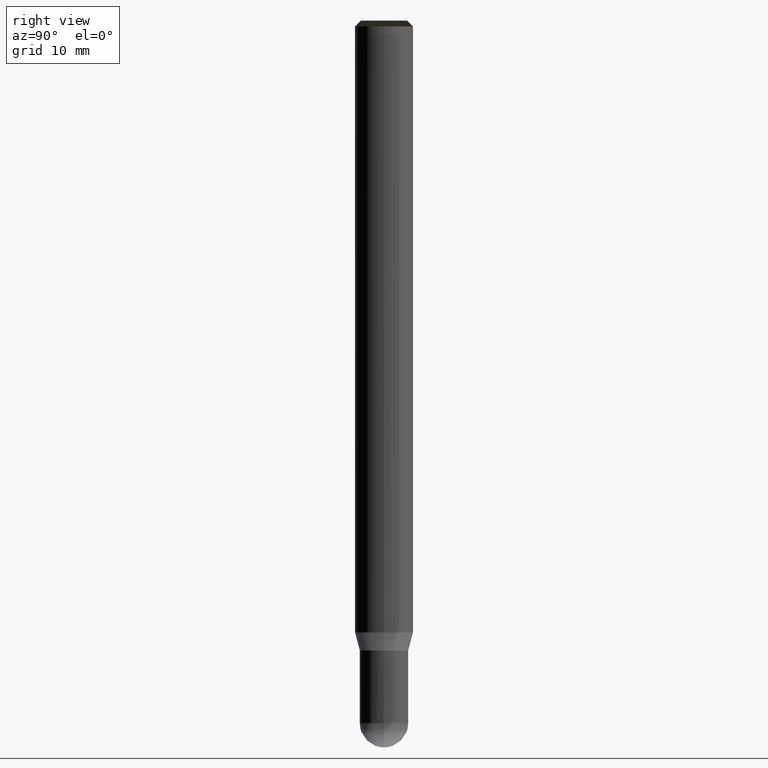
[diagram: clean part render]
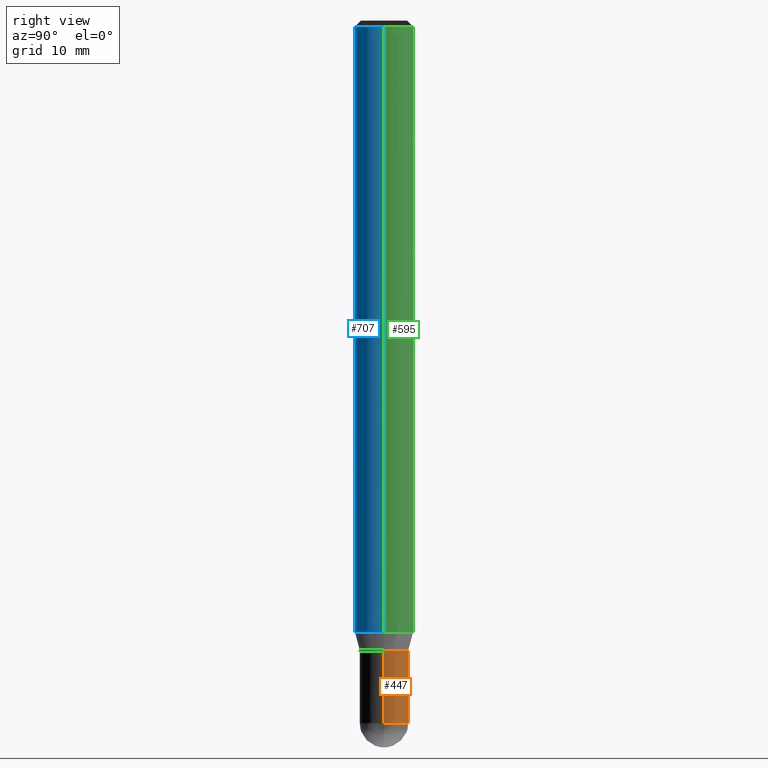
[diagram: same view with three faces highlighted in distinct colors, each labeled with its STEP entity id]
A machine part, right view with three faces highlighted in distinct colors.
Their STEP definitions:

[orange] entity #447 — the highlighted face is a freeform B-spline surface patch.
#354=CARTESIAN_POINT('',(2.5,0.0,-9.367));
#355=CARTESIAN_POINT('',(2.5,2.5,-9.367));
#356=CARTESIAN_POINT('',(0.0,2.5,-9.367));
#357=CARTESIAN_POINT('',(-2.5,2.5,-9.367));
#358=CARTESIAN_POINT('',(-2.5,0.0,-9.367));
#359=CARTESIAN_POINT('',(2.5,0.0,-1.867));
#360=CARTESIAN_POINT('',(2.5,2.5,-1.867));
#361=CARTESIAN_POINT('',(0.0,2.5,-1.867));
#362=CARTESIAN_POINT('',(-2.5,2.5,-1.867));
#363=CARTESIAN_POINT('',(-2.5,0.0,-1.867));
#428=(
BOUNDED_SURFACE()
B_SPLINE_SURFACE(1,2,(
(#354,#355,#356,#357,#358),
(#359,#360,#361,#362,#363)
), .UNSPECIFIED.,.F.,.F.,.F.)
B_SPLINE_SURFACE_WITH_KNOTS((2,2),(3,2,3),(
0.0,1.0),(
0.0,0.5,1.0), .UNSPECIFIED.)
GEOMETRIC_REPRESENTATION_ITEM()
RATIONAL_B_SPLINE_SURFACE(((1.0,0.707106781187,1.0,0.707106781187,1.0),
(1.0,0.707106781187,1.0,0.707106781187,1.0)
))
REPRESENTATION_ITEM('')
SURFACE()
);
#429=(
BOUNDED_CURVE()
B_SPLINE_CURVE(2,(#359,#360,#361,#362,#363),.UNSPECIFIED.,.F.,.F.)
B_SPLINE_CURVE_WITH_KNOTS((3,2,3),
(0.0,0.5,1.0),.UNSPECIFIED.)
CURVE()
GEOMETRIC_REPRESENTATION_ITEM()
RATIONAL_B_SPLINE_CURVE((1.0,0.707106781187,1.0,0.707106781187,1.0))
REPRESENTATION_ITEM('')
);
#430=(
BOUNDED_CURVE()
B_SPLINE_CURVE(1,(#363,#358),.UNSPECIFIED.,.F.,.F.)
B_SPLINE_CURVE_WITH_KNOTS((2,2),
(0.0,1.0),.UNSPECIFIED.)
CURVE()
GEOMETRIC_REPRESENTATION_ITEM()
RATIONAL_B_SPLINE_CURVE((1.0,1.0))
REPRESENTATION_ITEM('')
);
#431=(
BOUNDED_CURVE()
B_SPLINE_CURVE(2,(#358,#357,#356,#355,#354),.UNSPECIFIED.,.F.,.F.)
B_SPLINE_CURVE_WITH_KNOTS((3,2,3),
(0.0,0.5,1.0),.UNSPECIFIED.)
CURVE()
GEOMETRIC_REPRESENTATION_ITEM()
RATIONAL_B_SPLINE_CURVE((1.0,0.707106781187,1.0,0.707106781187,1.0))
REPRESENTATION_ITEM('')
);
#432=(
BOUNDED_CURVE()
B_SPLINE_CURVE(1,(#354,#359),.UNSPECIFIED.,.F.,.F.)
B_SPLINE_CURVE_WITH_KNOTS((2,2),
(0.0,1.0),.UNSPECIFIED.)
CURVE()
GEOMETRIC_REPRESENTATION_ITEM()
RATIONAL_B_SPLINE_CURVE((1.0,1.0))
REPRESENTATION_ITEM('')
);
#433=VERTEX_POINT('',#354);
#434=VERTEX_POINT('',#358);
#435=VERTEX_POINT('',#359);
#436=VERTEX_POINT('',#363);
#437=EDGE_CURVE('',#435,#436,#429,.T.);
#438=EDGE_CURVE('',#436,#434,#430,.T.);
#439=EDGE_CURVE('',#434,#433,#431,.T.);
#440=EDGE_CURVE('',#433,#435,#432,.T.);
#441=ORIENTED_EDGE('',*,*,#437,.T.);
#442=ORIENTED_EDGE('',*,*,#438,.T.);
#443=ORIENTED_EDGE('',*,*,#439,.T.);
#444=ORIENTED_EDGE('',*,*,#440,.T.);
#445=EDGE_LOOP('',(#441,#442,#443,#444));
#446=FACE_OUTER_BOUND('',#445,.T.);
#447=ADVANCED_FACE('',(#446),#428,.T.);

[blue] entity #707 — the highlighted face is a freeform B-spline surface patch.
#379=CARTESIAN_POINT('',(3.0,0.0,-0.0));
#383=CARTESIAN_POINT('',(-3.0,0.0,-0.0));
#384=CARTESIAN_POINT('',(3.0,0.0,62.533));
#388=CARTESIAN_POINT('',(-3.0,0.0,62.533));
#398=CARTESIAN_POINT('',(-3.0,-3.0,-0.0));
#399=CARTESIAN_POINT('',(0.0,-3.0,-0.0));
#400=CARTESIAN_POINT('',(3.0,-3.0,-0.0));
#401=CARTESIAN_POINT('',(-3.0,-3.0,62.533));
#402=CARTESIAN_POINT('',(0.0,-3.0,62.533));
#403=CARTESIAN_POINT('',(3.0,-3.0,62.533));
#688=(
BOUNDED_SURFACE()
B_SPLINE_SURFACE(1,2,(
(#383,#398,#399,#400,#379),
(#388,#401,#402,#403,#384)
), .UNSPECIFIED.,.F.,.F.,.F.)
B_SPLINE_SURFACE_WITH_KNOTS((2,2),(3,2,3),(
0.0,1.0),(
0.0,0.5,1.0), .UNSPECIFIED.)
GEOMETRIC_REPRESENTATION_ITEM()
RATIONAL_B_SPLINE_SURFACE(((1.0,0.707106781187,1.0,0.707106781187,1.0),
(1.0,0.707106781187,1.0,0.707106781187,1.0)
))
REPRESENTATION_ITEM('')
SURFACE()
);
#689=(
BOUNDED_CURVE()
B_SPLINE_CURVE(1,(#388,#383),.UNSPECIFIED.,.F.,.F.)
B_SPLINE_CURVE_WITH_KNOTS((2,2),
(0.0,1.0),.UNSPECIFIED.)
CURVE()
GEOMETRIC_REPRESENTATION_ITEM()
RATIONAL_B_SPLINE_CURVE((1.0,1.0))
REPRESENTATION_ITEM('')
);
#690=(
BOUNDED_CURVE()
B_SPLINE_CURVE(2,(#383,#398,#399,#400,#379),.UNSPECIFIED.,.F.,.F.)
B_SPLINE_CURVE_WITH_KNOTS((3,2,3),
(0.0,0.5,1.0),.UNSPECIFIED.)
CURVE()
GEOMETRIC_REPRESENTATION_ITEM()
RATIONAL_B_SPLINE_CURVE((1.0,0.707106781187,1.0,0.707106781187,1.0))
REPRESENTATION_ITEM('')
);
#691=(
BOUNDED_CURVE()
B_SPLINE_CURVE(1,(#379,#384),.UNSPECIFIED.,.F.,.F.)
B_SPLINE_CURVE_WITH_KNOTS((2,2),
(0.0,1.0),.UNSPECIFIED.)
CURVE()
GEOMETRIC_REPRESENTATION_ITEM()
RATIONAL_B_SPLINE_CURVE((1.0,1.0))
REPRESENTATION_ITEM('')
);
#692=(
BOUNDED_CURVE()
B_SPLINE_CURVE(2,(#384,#403,#402,#401,#388),.UNSPECIFIED.,.F.,.F.)
B_SPLINE_CURVE_WITH_KNOTS((3,2,3),
(0.0,0.5,1.0),.UNSPECIFIED.)
CURVE()
GEOMETRIC_REPRESENTATION_ITEM()
RATIONAL_B_SPLINE_CURVE((1.0,0.707106781187,1.0,0.707106781187,1.0))
REPRESENTATION_ITEM('')
);
#693=VERTEX_POINT('',#379);
#694=VERTEX_POINT('',#383);
#695=VERTEX_POINT('',#384);
#696=VERTEX_POINT('',#388);
#697=EDGE_CURVE('',#696,#694,#689,.T.);
#698=EDGE_CURVE('',#694,#693,#690,.T.);
#699=EDGE_CURVE('',#693,#695,#691,.T.);
#700=EDGE_CURVE('',#695,#696,#692,.T.);
#701=ORIENTED_EDGE('',*,*,#697,.T.);
#702=ORIENTED_EDGE('',*,*,#698,.T.);
#703=ORIENTED_EDGE('',*,*,#699,.T.);
#704=ORIENTED_EDGE('',*,*,#700,.T.);
#705=EDGE_LOOP('',(#701,#702,#703,#704));
#706=FACE_OUTER_BOUND('',#705,.T.);
#707=ADVANCED_FACE('',(#706),#688,.T.);

[green] entity #595 — the highlighted face is a freeform B-spline surface patch.
#379=CARTESIAN_POINT('',(3.0,0.0,-0.0));
#380=CARTESIAN_POINT('',(3.0,3.0,-0.0));
#381=CARTESIAN_POINT('',(0.0,3.0,-0.0));
#382=CARTESIAN_POINT('',(-3.0,3.0,-0.0));
#383=CARTESIAN_POINT('',(-3.0,0.0,-0.0));
#384=CARTESIAN_POINT('',(3.0,0.0,62.533));
#385=CARTESIAN_POINT('',(3.0,3.0,62.533));
#386=CARTESIAN_POINT('',(0.0,3.0,62.533));
#387=CARTESIAN_POINT('',(-3.0,3.0,62.533));
#388=CARTESIAN_POINT('',(-3.0,0.0,62.533));
#576=(
BOUNDED_SURFACE()
B_SPLINE_SURFACE(1,2,(
(#379,#380,#381,#382,#383),
(#384,#385,#386,#387,#388)
), .UNSPECIFIED.,.F.,.F.,.F.)
B_SPLINE_SURFACE_WITH_KNOTS((2,2),(3,2,3),(
0.0,1.0),(
0.0,0.5,1.0), .UNSPECIFIED.)
GEOMETRIC_REPRESENTATION_ITEM()
RATIONAL_B_SPLINE_SURFACE(((1.0,0.707106781187,1.0,0.707106781187,1.0),
(1.0,0.707106781187,1.0,0.707106781187,1.0)
))
REPRESENTATION_ITEM('')
SURFACE()
);
#577=(
BOUNDED_CURVE()
B_SPLINE_CURVE(2,(#384,#385,#386,#387,#388),.UNSPECIFIED.,.F.,.F.)
B_SPLINE_CURVE_WITH_KNOTS((3,2,3),
(0.0,0.5,1.0),.UNSPECIFIED.)
CURVE()
GEOMETRIC_REPRESENTATION_ITEM()
RATIONAL_B_SPLINE_CURVE((1.0,0.707106781187,1.0,0.707106781187,1.0))
REPRESENTATION_ITEM('')
);
#578=(
BOUNDED_CURVE()
B_SPLINE_CURVE(1,(#388,#383),.UNSPECIFIED.,.F.,.F.)
B_SPLINE_CURVE_WITH_KNOTS((2,2),
(0.0,1.0),.UNSPECIFIED.)
CURVE()
GEOMETRIC_REPRESENTATION_ITEM()
RATIONAL_B_SPLINE_CURVE((1.0,1.0))
REPRESENTATION_ITEM('')
);
#579=(
BOUNDED_CURVE()
B_SPLINE_CURVE(2,(#383,#382,#381,#380,#379),.UNSPECIFIED.,.F.,.F.)
B_SPLINE_CURVE_WITH_KNOTS((3,2,3),
(0.0,0.5,1.0),.UNSPECIFIED.)
CURVE()
GEOMETRIC_REPRESENTATION_ITEM()
RATIONAL_B_SPLINE_CURVE((1.0,0.707106781187,1.0,0.707106781187,1.0))
REPRESENTATION_ITEM('')
);
#580=(
BOUNDED_CURVE()
B_SPLINE_CURVE(1,(#379,#384),.UNSPECIFIED.,.F.,.F.)
B_SPLINE_CURVE_WITH_KNOTS((2,2),
(0.0,1.0),.UNSPECIFIED.)
CURVE()
GEOMETRIC_REPRESENTATION_ITEM()
RATIONAL_B_SPLINE_CURVE((1.0,1.0))
REPRESENTATION_ITEM('')
);
#581=VERTEX_POINT('',#379);
#582=VERTEX_POINT('',#383);
#583=VERTEX_POINT('',#384);
#584=VERTEX_POINT('',#388);
#585=EDGE_CURVE('',#583,#584,#577,.T.);
#586=EDGE_CURVE('',#584,#582,#578,.T.);
#587=EDGE_CURVE('',#582,#581,#579,.T.);
#588=EDGE_CURVE('',#581,#583,#580,.T.);
#589=ORIENTED_EDGE('',*,*,#585,.T.);
#590=ORIENTED_EDGE('',*,*,#586,.T.);
#591=ORIENTED_EDGE('',*,*,#587,.T.);
#592=ORIENTED_EDGE('',*,*,#588,.T.);
#593=EDGE_LOOP('',(#589,#590,#591,#592));
#594=FACE_OUTER_BOUND('',#593,.T.);
#595=ADVANCED_FACE('',(#594),#576,.T.);